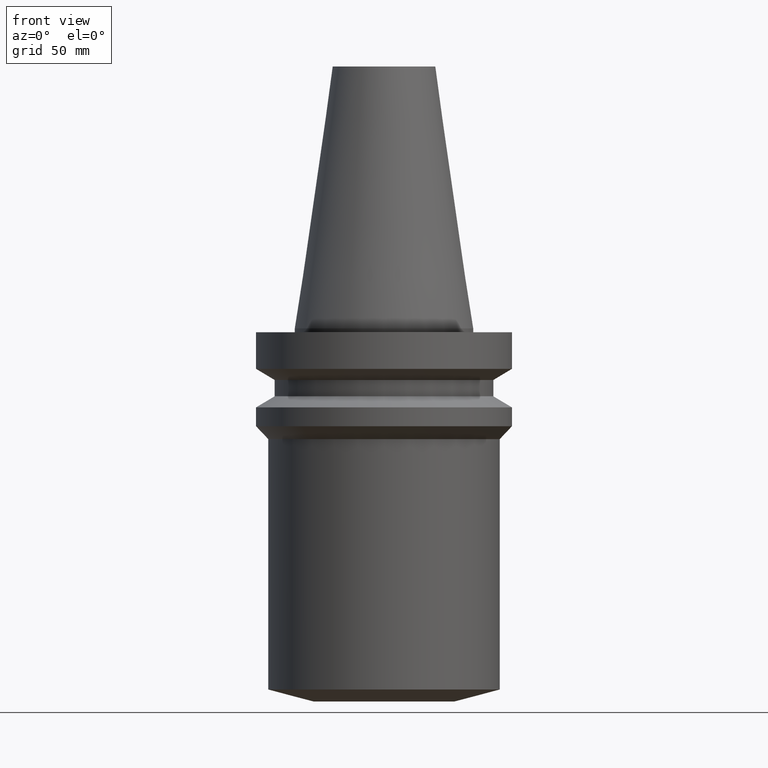
[diagram: clean part render]
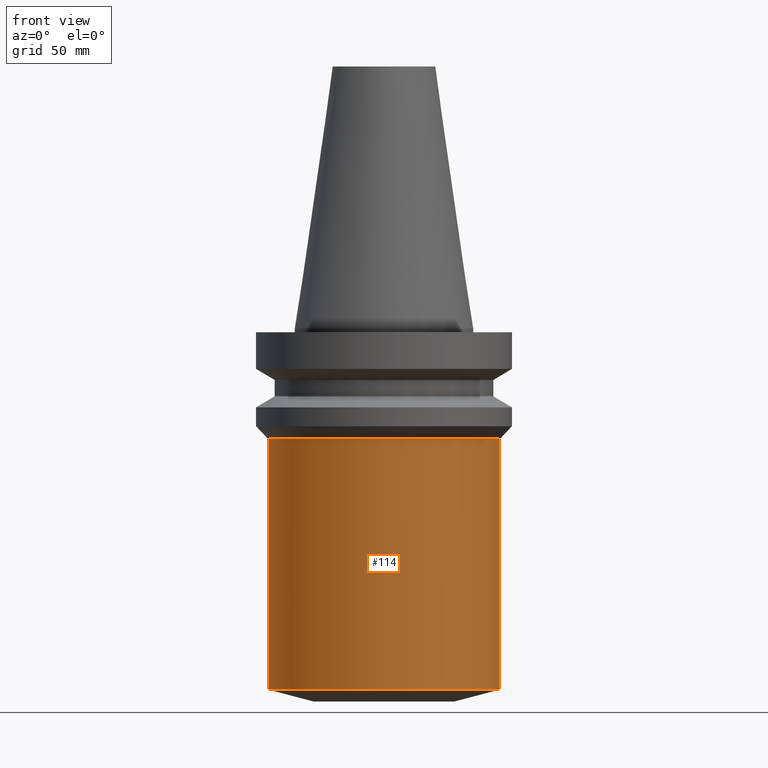
[diagram: same view with one face highlighted and labeled with its STEP entity id]
A machine part, front view. The second image highlights one B-rep face of the part: STEP entity #114.
In plain terms, the highlighted cylindrical surface (bore or boss wall) has radius 45 mm, axis along (0, 0, -1).
Its self-contained STEP definition (entity closure, byte-faithful):
#80=EDGE_CURVE('Unnamed[1]',#177,#177,#178,.T.);
#82=EDGE_CURVE('Unnamed[1]',#180,#180,#181,.T.);
#114=ADVANCED_FACE('Unnamed[1]',(#230,#231),#232,.T.);
#177=VERTEX_POINT('',#297);
#178=CIRCLE('',#298,45.0);
#180=VERTEX_POINT('',#301);
#181=CIRCLE('',#302,45.0);
#230=FACE_BOUND('',#363,.T.);
#231=FACE_BOUND('',#364,.T.);
#232=CYLINDRICAL_SURFACE('',#365,45.0);
#297=CARTESIAN_POINT('',(2.63299061816681E-015,45.0,-43.0));
#298=AXIS2_PLACEMENT_3D('',#415,#416,#417);
#301=CARTESIAN_POINT('',(8.5915640631372E-015,45.0,-140.310889133405));
#302=AXIS2_PLACEMENT_3D('',#418,#419,#420);
#363=EDGE_LOOP('',(#475));
#364=EDGE_LOOP('',(#476));
#365=AXIS2_PLACEMENT_3D('',#477,#478,#479);
#415=CARTESIAN_POINT('',(2.63299061816681E-015,5.26598123633362E-015,-43.0));
#416=DIRECTION('',(6.12323399573677E-017,1.22464679914735E-016,-1.0));
#417=DIRECTION('',(-1.23259516440783E-032,1.0,1.22464679914735E-016));
#418=CARTESIAN_POINT('',(8.5915640631372E-015,1.71831281262744E-014,-140.310889133405));
#419=DIRECTION('',(6.12323399573677E-017,1.22464679914735E-016,-1.0));
#420=DIRECTION('',(-1.23259516440783E-032,1.0,1.22464679914735E-016));
#475=ORIENTED_EDGE('',*,*,#82,.F.);
#476=ORIENTED_EDGE('',*,*,#80,.T.);
#477=CARTESIAN_POINT('',(5.612277340652E-015,1.1224554681304E-014,-91.6554445667027));
#478=DIRECTION('',(6.12323399573677E-017,1.22464679914735E-016,-1.0));
#479=DIRECTION('',(-1.23259516440783E-032,1.0,1.22464679914735E-016));